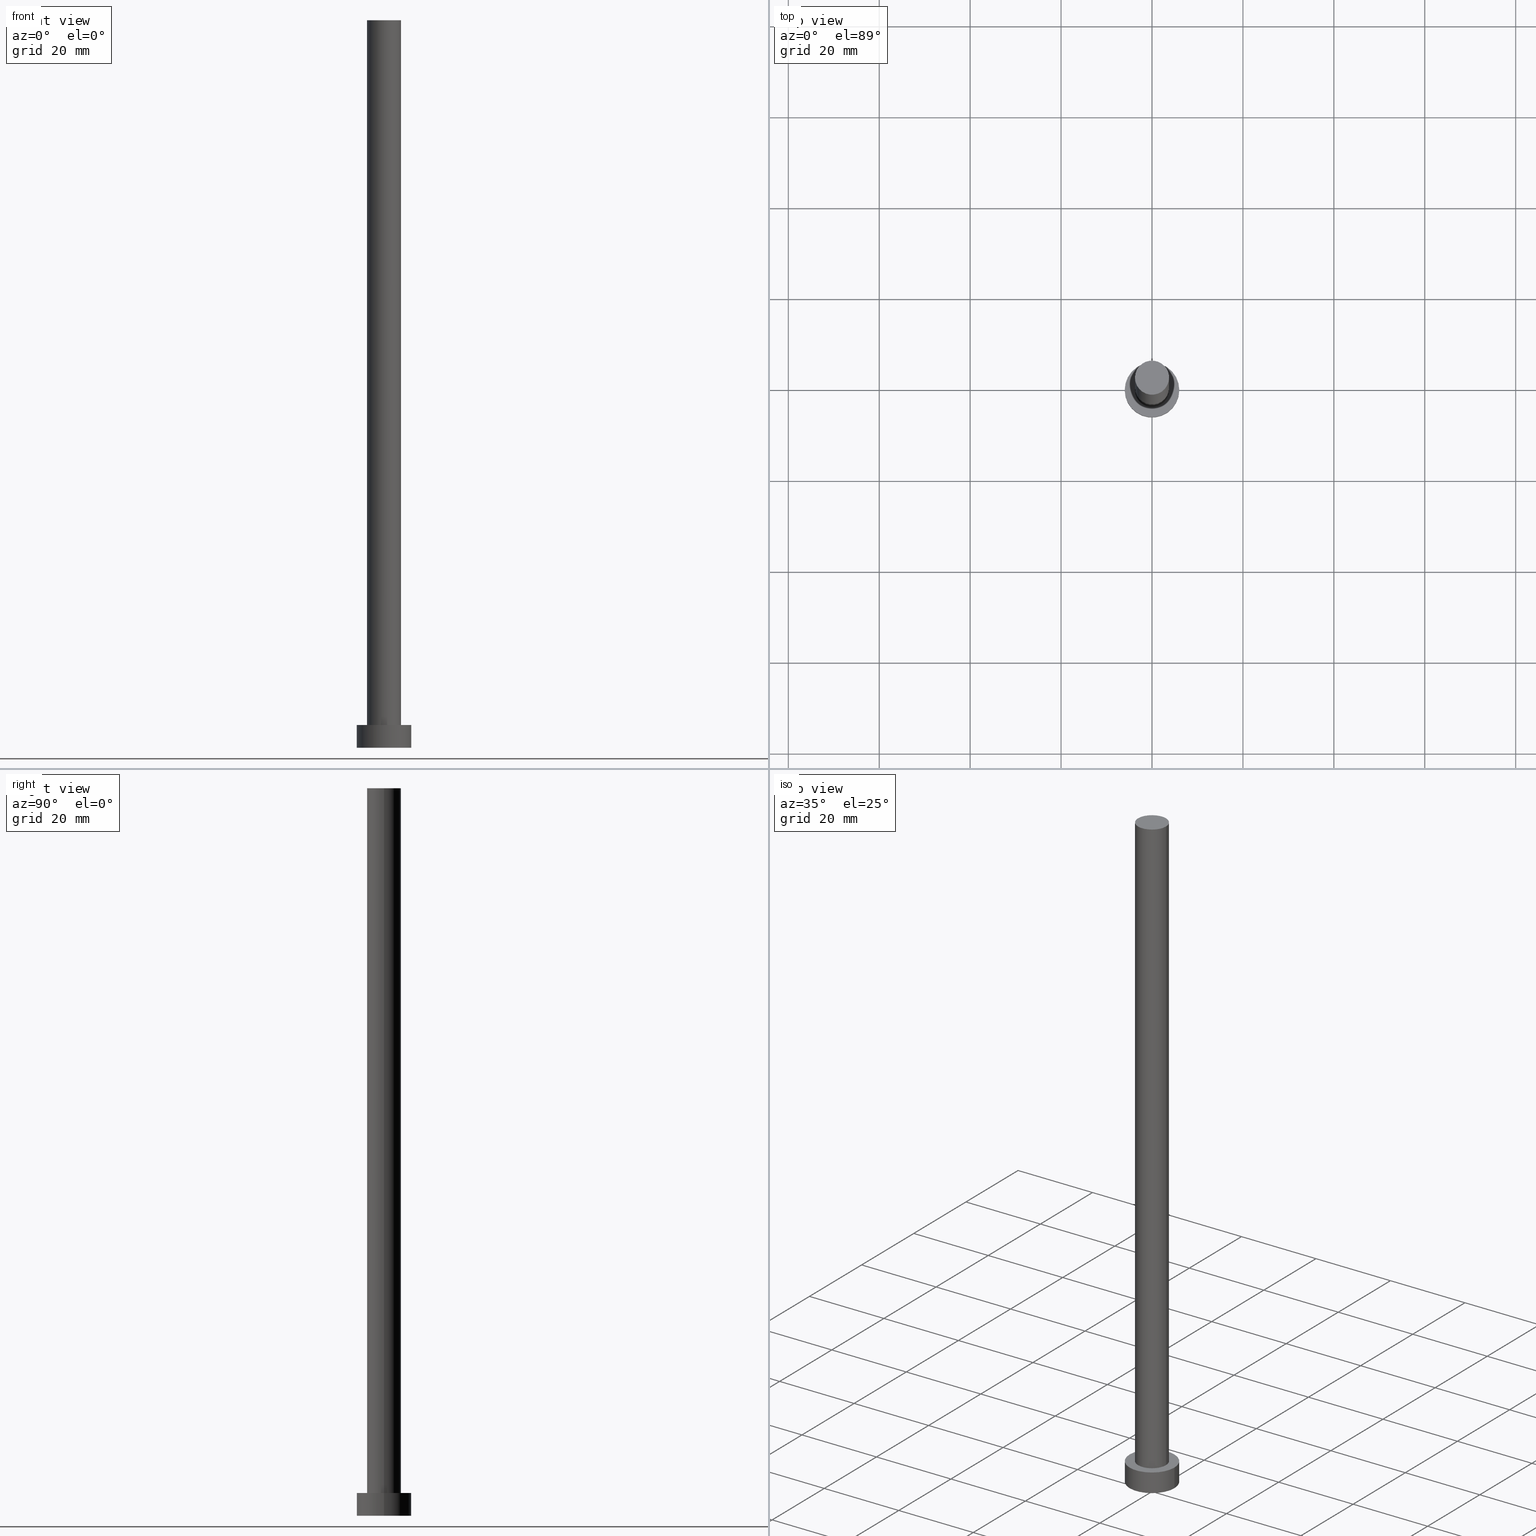
[diagram: canonical four-view strip — front | top / right | iso, engineering-drawing reading convention]
A machine part, canonical four-view strip (front | top / right | iso — engineering-drawing reading convention). The complete STEP part file that produces these views, byte-faithful:
ISO-10303-21;
HEADER;
FILE_DESCRIPTION (( 'STEP AP203' ),
    '1' );
FILE_NAME ('aaca.STEP',
    '2023-02-12T11:57:27',
    ( '' ),
    ( '' ),
    'SwSTEP 2.0',
    'SolidWorks 2019',
    '' );
FILE_SCHEMA (( 'CONFIG_CONTROL_DESIGN' ));
ENDSEC;

DATA;
#1 = APPROVAL_STATUS ( 'not_yet_approved' ) ;
#2 = APPROVAL ( #190, 'NEUR�EN�' ) ;
#3 = AXIS2_PLACEMENT_3D ( 'NONE', #227, #102, #70 ) ;
#4 = CARTESIAN_POINT ( 'NONE',  ( 6.000000000000000888, 7.347880794884120722E-16, 0.000000000000000000 ) ) ;
#5 = CARTESIAN_POINT ( 'NONE',  ( 0.000000000000000000, 0.000000000000000000, 5.000000000000000000 ) ) ;
#6 = ORIENTED_EDGE ( 'NONE', *, *, #71, .T. ) ;
#7 = APPLICATION_CONTEXT ( 'configuration controlled 3d designs of mechanical parts and assemblies' ) ;
#8 = APPROVAL_PERSON_ORGANIZATION ( #32, #232, #9 ) ;
#9 = APPROVAL_ROLE ( '' ) ;
#10 = AXIS2_PLACEMENT_3D ( 'NONE', #41, #18, #158 ) ;
#11 = CYLINDRICAL_SURFACE ( 'NONE', #252, 6.000000000000000888 ) ;
#12 = LOCAL_TIME ( 12, 57, 27.00000000000000000, #86 ) ;
#13 = CARTESIAN_POINT ( 'NONE',  ( 0.000000000000000000, 0.000000000000000000, 5.000000000000000000 ) ) ;
#14 = ORIENTED_EDGE ( 'NONE', *, *, #187, .T. ) ;
#15 =( GEOMETRIC_REPRESENTATION_CONTEXT ( 3 ) GLOBAL_UNCERTAINTY_ASSIGNED_CONTEXT ( ( #56 ) ) GLOBAL_UNIT_ASSIGNED_CONTEXT ( ( #219, #17, #76 ) ) REPRESENTATION_CONTEXT ( 'NONE', 'WORKASPACE' ) );
#16 = DIRECTION ( 'NONE',  ( -1.000000000000000000, 0.000000000000000000, 0.000000000000000000 ) ) ;
#17 =( NAMED_UNIT ( * ) PLANE_ANGLE_UNIT ( ) SI_UNIT ( $, .RADIAN. ) );
#18 = DIRECTION ( 'NONE',  ( 0.000000000000000000, 0.000000000000000000, 1.000000000000000000 ) ) ;
#19 = DATE_AND_TIME ( #57, #135 ) ;
#20 = LOCAL_TIME ( 12, 57, 27.00000000000000000, #64 ) ;
#21 = EDGE_CURVE ( 'NONE', #27, #91, #235, .T. ) ;
#22 = DATE_AND_TIME ( #44, #79 ) ;
#23 = ORIENTED_EDGE ( 'NONE', *, *, #237, .T. ) ;
#24 = DIRECTION ( 'NONE',  ( 0.000000000000000000, 0.000000000000000000, 1.000000000000000000 ) ) ;
#25 = FACE_OUTER_BOUND ( 'NONE', #142, .T. ) ;
#26 = PRODUCT_RELATED_PRODUCT_CATEGORY ( 'detail', '', ( #115 ) ) ;
#27 = VERTEX_POINT ( 'NONE', #118 ) ;
#28 = CARTESIAN_POINT ( 'NONE',  ( 0.000000000000000000, 0.000000000000000000, 5.000000000000000000 ) ) ;
#29 = APPROVAL_DATE_TIME ( #211, #232 ) ;
#30 = DIRECTION ( 'NONE',  ( 0.000000000000000000, 0.000000000000000000, 1.000000000000000000 ) ) ;
#31 = DIRECTION ( 'NONE',  ( -1.000000000000000000, 0.000000000000000000, 0.000000000000000000 ) ) ;
#32 = PERSON_AND_ORGANIZATION ( #154, #191 ) ;
#33 = EDGE_LOOP ( 'NONE', ( #212, #84, #14, #80 ) ) ;
#34 = ADVANCED_FACE ( 'NONE', ( #217 ), #193, .T. ) ;
#35 = AXIS2_PLACEMENT_3D ( 'NONE', #200, #24, #149 ) ;
#36 = DIRECTION ( 'NONE',  ( -0.000000000000000000, -0.000000000000000000, -1.000000000000000000 ) ) ;
#37 = CARTESIAN_POINT ( 'NONE',  ( 0.000000000000000000, 0.000000000000000000, 160.0000000000000000 ) ) ;
#38 = ORIENTED_EDGE ( 'NONE', *, *, #78, .F. ) ;
#39 = PERSON_AND_ORGANIZATION ( #154, #191 ) ;
#40 = CIRCLE ( 'NONE', #35, 3.750000000000000000 ) ;
#41 = CARTESIAN_POINT ( 'NONE',  ( 0.000000000000000000, 0.000000000000000000, 0.000000000000000000 ) ) ;
#42 = PRODUCT_DEFINITION ( 'NEZN�M�', '', #87, #117 ) ;
#43 = DIRECTION ( 'NONE',  ( 1.000000000000000000, 0.000000000000000000, -0.000000000000000000 ) ) ;
#44 = CALENDAR_DATE ( 2023, 12, 2 ) ;
#45 = ORIENTED_EDGE ( 'NONE', *, *, #71, .F. ) ;
#46 = ADVANCED_BREP_SHAPE_REPRESENTATION ( 'aaca', ( #113, #209 ), #15 ) ;
#47 = CYLINDRICAL_SURFACE ( 'NONE', #150, 3.750000000000000000 ) ;
#48 = AXIS2_PLACEMENT_3D ( 'NONE', #13, #68, #156 ) ;
#49 = EDGE_CURVE ( 'NONE', #162, #91, #216, .T. ) ;
#50 = APPROVAL_STATUS ( 'not_yet_approved' ) ;
#51 = DIRECTION ( 'NONE',  ( -0.000000000000000000, -0.000000000000000000, -1.000000000000000000 ) ) ;
#52 = COORDINATED_UNIVERSAL_TIME_OFFSET ( 1, 0, .AHEAD. ) ;
#53 = EDGE_CURVE ( 'NONE', #247, #160, #196, .T. ) ;
#54 = DIRECTION ( 'NONE',  ( 1.000000000000000000, 0.000000000000000000, 0.000000000000000000 ) ) ;
#55 = DIRECTION ( 'NONE',  ( -0.000000000000000000, -0.000000000000000000, -1.000000000000000000 ) ) ;
#56 = UNCERTAINTY_MEASURE_WITH_UNIT (LENGTH_MEASURE( 1.000000000000000082E-05 ), #219, 'distance_accuracy_value', 'NONE');
#57 = CALENDAR_DATE ( 2023, 12, 2 ) ;
#58 = ORIENTED_EDGE ( 'NONE', *, *, #53, .F. ) ;
#59 = CIRCLE ( 'NONE', #139, 3.750000000000000000 ) ;
#60 = MECHANICAL_CONTEXT ( 'NONE', #171, 'mechanical' ) ;
#61 = FACE_OUTER_BOUND ( 'NONE', #105, .T. ) ;
#62 = DATE_AND_TIME ( #81, #177 ) ;
#63 = EDGE_CURVE ( 'NONE', #91, #162, #202, .T. ) ;
#64 = COORDINATED_UNIVERSAL_TIME_OFFSET ( 1, 0, .AHEAD. ) ;
#65 = CARTESIAN_POINT ( 'NONE',  ( 3.750000000000000000, 4.592425496802573972E-16, 160.0000000000000000 ) ) ;
#66 = APPROVAL_DATE_TIME ( #85, #2 ) ;
#67 = VECTOR ( 'NONE', #51, 1000.000000000000000 ) ;
#68 = DIRECTION ( 'NONE',  ( 0.000000000000000000, 0.000000000000000000, 1.000000000000000000 ) ) ;
#69 = AXIS2_PLACEMENT_3D ( 'NONE', #168, #116, #234 ) ;
#70 = DIRECTION ( 'NONE',  ( 1.000000000000000000, 0.000000000000000000, 0.000000000000000000 ) ) ;
#71 = EDGE_CURVE ( 'NONE', #77, #247, #130, .T. ) ;
#72 = CARTESIAN_POINT ( 'NONE',  ( 0.000000000000000000, 0.000000000000000000, 5.000000000000000000 ) ) ;
#73 = PERSON_AND_ORGANIZATION ( #154, #191 ) ;
#74 = PLANE ( 'NONE',  #249 ) ;
#75 = ORIENTED_EDGE ( 'NONE', *, *, #253, .F. ) ;
#76 =( NAMED_UNIT ( * ) SI_UNIT ( $, .STERADIAN. ) SOLID_ANGLE_UNIT ( ) );
#77 = VERTEX_POINT ( 'NONE', #179 ) ;
#78 = EDGE_CURVE ( 'NONE', #236, #160, #198, .T. ) ;
#79 = LOCAL_TIME ( 12, 57, 27.00000000000000000, #221 ) ;
#80 = ORIENTED_EDGE ( 'NONE', *, *, #237, .F. ) ;
#81 = CALENDAR_DATE ( 2023, 12, 2 ) ;
#82 = PRODUCT_DEFINITION_SHAPE ( 'NONE', 'NONE',  #42 ) ;
#83 = AXIS2_PLACEMENT_3D ( 'NONE', #92, #98, #140 ) ;
#84 = ORIENTED_EDGE ( 'NONE', *, *, #53, .T. ) ;
#85 = DATE_AND_TIME ( #170, #12 ) ;
#86 = COORDINATED_UNIVERSAL_TIME_OFFSET ( 1, 0, .AHEAD. ) ;
#87 = PRODUCT_DEFINITION_FORMATION_WITH_SPECIFIED_SOURCE ( 'LIBOVOLN�', '', #115, .NOT_KNOWN. ) ;
#88 = CARTESIAN_POINT ( 'NONE',  ( -3.750000000000000000, 0.000000000000000000, 160.0000000000000000 ) ) ;
#89 = CLOSED_SHELL ( 'NONE', ( #240, #215, #124, #205, #93, #213, #34 ) ) ;
#90 = CC_DESIGN_PERSON_AND_ORGANIZATION_ASSIGNMENT ( #248, #107, ( #231 ) ) ;
#91 = VERTEX_POINT ( 'NONE', #222 ) ;
#92 = CARTESIAN_POINT ( 'NONE',  ( 0.000000000000000000, 0.000000000000000000, 5.000000000000000000 ) ) ;
#93 = ADVANCED_FACE ( 'NONE', ( #123 ), #74, .F. ) ;
#94 = COORDINATED_UNIVERSAL_TIME_OFFSET ( 1, 0, .AHEAD. ) ;
#95 = ORIENTED_EDGE ( 'NONE', *, *, #49, .T. ) ;
#96 = CC_DESIGN_SECURITY_CLASSIFICATION ( #231, ( #87 ) ) ;
#97 = DATE_TIME_ROLE ( 'creation_date' ) ;
#98 = DIRECTION ( 'NONE',  ( 0.000000000000000000, 0.000000000000000000, 1.000000000000000000 ) ) ;
#99 = FACE_OUTER_BOUND ( 'NONE', #181, .T. ) ;
#100 = CARTESIAN_POINT ( 'NONE',  ( 6.000000000000000888, 7.347880794884120722E-16, 5.000000000000000000 ) ) ;
#101 = ORIENTED_EDGE ( 'NONE', *, *, #228, .T. ) ;
#102 = DIRECTION ( 'NONE',  ( 0.000000000000000000, 0.000000000000000000, 1.000000000000000000 ) ) ;
#103 = ORIENTED_EDGE ( 'NONE', *, *, #187, .F. ) ;
#104 = CC_DESIGN_APPROVAL ( #2, ( #231 ) ) ;
#105 = EDGE_LOOP ( 'NONE', ( #128, #75, #243, #218 ) ) ;
#106 = PERSON_AND_ORGANIZATION ( #154, #191 ) ;
#107 = PERSON_AND_ORGANIZATION_ROLE ( 'classification_officer' ) ;
#108 = CARTESIAN_POINT ( 'NONE',  ( 0.000000000000000000, 0.000000000000000000, 5.000000000000000000 ) ) ;
#109 = CC_DESIGN_PERSON_AND_ORGANIZATION_ASSIGNMENT ( #73, #143, ( #42 ) ) ;
#110 = AXIS2_PLACEMENT_3D ( 'NONE', #28, #30, #225 ) ;
#111 = CC_DESIGN_PERSON_AND_ORGANIZATION_ASSIGNMENT ( #141, #197, ( #115 ) ) ;
#112 = LINE ( 'NONE', #192, #223 ) ;
#113 = MANIFOLD_SOLID_BREP ( 'P�idat vysunut�m3', #89 ) ;
#114 = ORIENTED_EDGE ( 'NONE', *, *, #49, .F. ) ;
#115 = PRODUCT ( 'aaca', 'aaca', '', ( #60 ) ) ;
#116 = DIRECTION ( 'NONE',  ( 0.000000000000000000, 0.000000000000000000, 1.000000000000000000 ) ) ;
#117 = DESIGN_CONTEXT ( 'detailed design', #7, 'design' ) ;
#118 = CARTESIAN_POINT ( 'NONE',  ( -3.750000000000000000, 0.000000000000000000, 160.0000000000000000 ) ) ;
#119 = DIRECTION ( 'NONE',  ( 0.000000000000000000, 0.000000000000000000, 1.000000000000000000 ) ) ;
#120 = AXIS2_PLACEMENT_3D ( 'NONE', #72, #36, #16 ) ;
#121 = ORIENTED_EDGE ( 'NONE', *, *, #78, .T. ) ;
#122 = APPLICATION_PROTOCOL_DEFINITION ( 'international standard', 'config_control_design', 1994, #171 ) ;
#123 = FACE_OUTER_BOUND ( 'NONE', #194, .T. ) ;
#124 = ADVANCED_FACE ( 'NONE', ( #99 ), #241, .T. ) ;
#125 = EDGE_LOOP ( 'NONE', ( #204, #114 ) ) ;
#126 = CIRCLE ( 'NONE', #83, 6.000000000000000888 ) ;
#127 = CARTESIAN_POINT ( 'NONE',  ( 0.000000000000000000, 0.000000000000000000, 0.000000000000000000 ) ) ;
#128 = ORIENTED_EDGE ( 'NONE', *, *, #228, .F. ) ;
#129 = DATE_TIME_ROLE ( 'classification_date' ) ;
#130 = CIRCLE ( 'NONE', #203, 6.000000000000000888 ) ;
#131 = AXIS2_PLACEMENT_3D ( 'NONE', #37, #183, #245 ) ;
#132 = EDGE_CURVE ( 'NONE', #247, #77, #126, .T. ) ;
#133 = CARTESIAN_POINT ( 'NONE',  ( 6.000000000000000888, 7.347880794884120722E-16, 5.000000000000000000 ) ) ;
#134 = LINE ( 'NONE', #65, #67 ) ;
#135 = LOCAL_TIME ( 12, 57, 27.00000000000000000, #94 ) ;
#136 = DIRECTION ( 'NONE',  ( -0.000000000000000000, -0.000000000000000000, -1.000000000000000000 ) ) ;
#137 = DIRECTION ( 'NONE',  ( 0.000000000000000000, 0.000000000000000000, 1.000000000000000000 ) ) ;
#138 = CC_DESIGN_PERSON_AND_ORGANIZATION_ASSIGNMENT ( #106, #250, ( #87 ) ) ;
#139 = AXIS2_PLACEMENT_3D ( 'NONE', #246, #180, #172 ) ;
#140 = DIRECTION ( 'NONE',  ( 1.000000000000000000, 0.000000000000000000, 0.000000000000000000 ) ) ;
#141 = PERSON_AND_ORGANIZATION ( #154, #191 ) ;
#142 = EDGE_LOOP ( 'NONE', ( #207, #101, #95, #184 ) ) ;
#143 = PERSON_AND_ORGANIZATION_ROLE ( 'creator' ) ;
#144 = DIRECTION ( 'NONE',  ( 0.000000000000000000, 0.000000000000000000, 1.000000000000000000 ) ) ;
#145 = CARTESIAN_POINT ( 'NONE',  ( 0.000000000000000000, 0.000000000000000000, 0.000000000000000000 ) ) ;
#146 = PERSON_AND_ORGANIZATION ( #154, #191 ) ;
#147 = PLANE ( 'NONE',  #110 ) ;
#148 = EDGE_LOOP ( 'NONE', ( #6, #255 ) ) ;
#149 = DIRECTION ( 'NONE',  ( 1.000000000000000000, 0.000000000000000000, 0.000000000000000000 ) ) ;
#150 = AXIS2_PLACEMENT_3D ( 'NONE', #189, #251, #31 ) ;
#151 = FACE_OUTER_BOUND ( 'NONE', #33, .T. ) ;
#152 = FACE_OUTER_BOUND ( 'NONE', #148, .T. ) ;
#153 = CC_DESIGN_DATE_AND_TIME_ASSIGNMENT ( #62, #129, ( #231 ) ) ;
#154 = PERSON ( 'NEUR�EN�', 'NEUR�EN�', 'NEUR�EN�', ('NEUR�EN�'), ('NEUR�EN�'), ('NEUR�EN�') ) ;
#155 = SHAPE_DEFINITION_REPRESENTATION ( #82, #46 ) ;
#156 = DIRECTION ( 'NONE',  ( 1.000000000000000000, 0.000000000000000000, 0.000000000000000000 ) ) ;
#157 = APPROVAL ( #1, 'NEUR�EN�' ) ;
#158 = DIRECTION ( 'NONE',  ( 1.000000000000000000, 0.000000000000000000, 0.000000000000000000 ) ) ;
#159 = DIRECTION ( 'NONE',  ( 1.000000000000000000, 0.000000000000000000, 0.000000000000000000 ) ) ;
#160 = VERTEX_POINT ( 'NONE', #4 ) ;
#161 = CYLINDRICAL_SURFACE ( 'NONE', #131, 3.750000000000000000 ) ;
#162 = VERTEX_POINT ( 'NONE', #226 ) ;
#163 = APPROVAL_PERSON_ORGANIZATION ( #39, #157, #199 ) ;
#164 = FACE_BOUND ( 'NONE', #125, .T. ) ;
#165 = APPROVAL_PERSON_ORGANIZATION ( #233, #2, #214 ) ;
#166 = EDGE_LOOP ( 'NONE', ( #224, #242 ) ) ;
#167 = DIRECTION ( 'NONE',  ( -1.000000000000000000, 0.000000000000000000, 0.000000000000000000 ) ) ;
#168 = CARTESIAN_POINT ( 'NONE',  ( 0.000000000000000000, 0.000000000000000000, 160.0000000000000000 ) ) ;
#169 = DIRECTION ( 'NONE',  ( -0.000000000000000000, -0.000000000000000000, -1.000000000000000000 ) ) ;
#170 = CALENDAR_DATE ( 2023, 12, 2 ) ;
#171 = APPLICATION_CONTEXT ( 'configuration controlled 3d designs of mechanical parts and assemblies' ) ;
#172 = DIRECTION ( 'NONE',  ( 1.000000000000000000, 0.000000000000000000, 0.000000000000000000 ) ) ;
#173 = DIRECTION ( 'NONE',  ( 0.000000000000000000, 0.000000000000000000, 1.000000000000000000 ) ) ;
#174 = DIRECTION ( 'NONE',  ( -0.000000000000000000, -0.000000000000000000, -1.000000000000000000 ) ) ;
#175 = APPLICATION_PROTOCOL_DEFINITION ( 'international standard', 'config_control_design', 1994, #7 ) ;
#176 = CC_DESIGN_DATE_AND_TIME_ASSIGNMENT ( #22, #97, ( #42 ) ) ;
#177 = LOCAL_TIME ( 12, 57, 27.00000000000000000, #52 ) ;
#178 = APPROVAL_DATE_TIME ( #19, #157 ) ;
#179 = CARTESIAN_POINT ( 'NONE',  ( -6.000000000000000888, 0.000000000000000000, 5.000000000000000000 ) ) ;
#180 = DIRECTION ( 'NONE',  ( 0.000000000000000000, 0.000000000000000000, 1.000000000000000000 ) ) ;
#181 = EDGE_LOOP ( 'NONE', ( #58, #45, #23, #121 ) ) ;
#182 = CC_DESIGN_PERSON_AND_ORGANIZATION_ASSIGNMENT ( #146, #230, ( #87 ) ) ;
#183 = DIRECTION ( 'NONE',  ( -0.000000000000000000, -0.000000000000000000, -1.000000000000000000 ) ) ;
#184 = ORIENTED_EDGE ( 'NONE', *, *, #21, .F. ) ;
#185 = VECTOR ( 'NONE', #55, 1000.000000000000000 ) ;
#186 = CALENDAR_DATE ( 2023, 12, 2 ) ;
#187 = EDGE_CURVE ( 'NONE', #160, #236, #229, .T. ) ;
#188 = CARTESIAN_POINT ( 'NONE',  ( 3.750000000000000000, 4.592425496802573972E-16, 160.0000000000000000 ) ) ;
#189 = CARTESIAN_POINT ( 'NONE',  ( 0.000000000000000000, 0.000000000000000000, 160.0000000000000000 ) ) ;
#190 = APPROVAL_STATUS ( 'not_yet_approved' ) ;
#191 = ORGANIZATION ( 'NEUR�EN�', 'NEUR�EN�', '' ) ;
#192 = CARTESIAN_POINT ( 'NONE',  ( -6.000000000000000888, 0.000000000000000000, 5.000000000000000000 ) ) ;
#193 = PLANE ( 'NONE',  #69 ) ;
#194 = EDGE_LOOP ( 'NONE', ( #38, #103 ) ) ;
#195 = EDGE_CURVE ( 'NONE', #220, #27, #40, .T. ) ;
#196 = LINE ( 'NONE', #133, #239 ) ;
#197 = PERSON_AND_ORGANIZATION_ROLE ( 'design_owner' ) ;
#198 = CIRCLE ( 'NONE', #3, 6.000000000000000888 ) ;
#199 = APPROVAL_ROLE ( '' ) ;
#200 = CARTESIAN_POINT ( 'NONE',  ( 0.000000000000000000, 0.000000000000000000, 160.0000000000000000 ) ) ;
#201 = DIRECTION ( 'NONE',  ( 1.000000000000000000, 0.000000000000000000, 0.000000000000000000 ) ) ;
#202 = CIRCLE ( 'NONE', #48, 3.750000000000000000 ) ;
#203 = AXIS2_PLACEMENT_3D ( 'NONE', #5, #173, #159 ) ;
#204 = ORIENTED_EDGE ( 'NONE', *, *, #63, .F. ) ;
#205 = ADVANCED_FACE ( 'NONE', ( #164, #152 ), #147, .T. ) ;
#206 = CC_DESIGN_APPROVAL ( #157, ( #42 ) ) ;
#207 = ORIENTED_EDGE ( 'NONE', *, *, #195, .F. ) ;
#208 = SECURITY_CLASSIFICATION_LEVEL ( 'unclassified' ) ;
#209 = AXIS2_PLACEMENT_3D ( 'NONE', #145, #119, #201 ) ;
#210 = CARTESIAN_POINT ( 'NONE',  ( -6.000000000000000888, 0.000000000000000000, 0.000000000000000000 ) ) ;
#211 = DATE_AND_TIME ( #186, #20 ) ;
#212 = ORIENTED_EDGE ( 'NONE', *, *, #132, .F. ) ;
#213 = ADVANCED_FACE ( 'NONE', ( #61 ), #47, .T. ) ;
#214 = APPROVAL_ROLE ( '' ) ;
#215 = ADVANCED_FACE ( 'NONE', ( #151 ), #11, .T. ) ;
#216 = CIRCLE ( 'NONE', #244, 3.750000000000000000 ) ;
#217 = FACE_OUTER_BOUND ( 'NONE', #166, .T. ) ;
#218 = ORIENTED_EDGE ( 'NONE', *, *, #63, .T. ) ;
#219 =( LENGTH_UNIT ( ) NAMED_UNIT ( * ) SI_UNIT ( .MILLI., .METRE. ) );
#220 = VERTEX_POINT ( 'NONE', #188 ) ;
#221 = COORDINATED_UNIVERSAL_TIME_OFFSET ( 1, 0, .AHEAD. ) ;
#222 = CARTESIAN_POINT ( 'NONE',  ( -3.750000000000000000, 0.000000000000000000, 5.000000000000000000 ) ) ;
#223 = VECTOR ( 'NONE', #174, 1000.000000000000000 ) ;
#224 = ORIENTED_EDGE ( 'NONE', *, *, #253, .T. ) ;
#225 = DIRECTION ( 'NONE',  ( 1.000000000000000000, 0.000000000000000000, -0.000000000000000000 ) ) ;
#226 = CARTESIAN_POINT ( 'NONE',  ( 3.750000000000000000, 4.592425496802573972E-16, 5.000000000000000000 ) ) ;
#227 = CARTESIAN_POINT ( 'NONE',  ( 0.000000000000000000, 0.000000000000000000, 0.000000000000000000 ) ) ;
#228 = EDGE_CURVE ( 'NONE', #220, #162, #134, .T. ) ;
#229 = CIRCLE ( 'NONE', #10, 6.000000000000000888 ) ;
#230 = PERSON_AND_ORGANIZATION_ROLE ( 'creator' ) ;
#231 = SECURITY_CLASSIFICATION ( '', '', #208 ) ;
#232 = APPROVAL ( #50, 'NEUR�EN�' ) ;
#233 = PERSON_AND_ORGANIZATION ( #154, #191 ) ;
#234 = DIRECTION ( 'NONE',  ( 1.000000000000000000, 0.000000000000000000, -0.000000000000000000 ) ) ;
#235 = LINE ( 'NONE', #88, #185 ) ;
#236 = VERTEX_POINT ( 'NONE', #210 ) ;
#237 = EDGE_CURVE ( 'NONE', #77, #236, #112, .T. ) ;
#238 = CARTESIAN_POINT ( 'NONE',  ( 0.000000000000000000, 0.000000000000000000, 5.000000000000000000 ) ) ;
#239 = VECTOR ( 'NONE', #136, 1000.000000000000000 ) ;
#240 = ADVANCED_FACE ( 'NONE', ( #25 ), #161, .T. ) ;
#241 = CYLINDRICAL_SURFACE ( 'NONE', #120, 6.000000000000000888 ) ;
#242 = ORIENTED_EDGE ( 'NONE', *, *, #195, .T. ) ;
#243 = ORIENTED_EDGE ( 'NONE', *, *, #21, .T. ) ;
#244 = AXIS2_PLACEMENT_3D ( 'NONE', #238, #137, #54 ) ;
#245 = DIRECTION ( 'NONE',  ( -1.000000000000000000, 0.000000000000000000, 0.000000000000000000 ) ) ;
#246 = CARTESIAN_POINT ( 'NONE',  ( 0.000000000000000000, 0.000000000000000000, 160.0000000000000000 ) ) ;
#247 = VERTEX_POINT ( 'NONE', #100 ) ;
#248 = PERSON_AND_ORGANIZATION ( #154, #191 ) ;
#249 = AXIS2_PLACEMENT_3D ( 'NONE', #127, #144, #43 ) ;
#250 = PERSON_AND_ORGANIZATION_ROLE ( 'design_supplier' ) ;
#251 = DIRECTION ( 'NONE',  ( -0.000000000000000000, -0.000000000000000000, -1.000000000000000000 ) ) ;
#252 = AXIS2_PLACEMENT_3D ( 'NONE', #108, #169, #167 ) ;
#253 = EDGE_CURVE ( 'NONE', #27, #220, #59, .T. ) ;
#254 = CC_DESIGN_APPROVAL ( #232, ( #87 ) ) ;
#255 = ORIENTED_EDGE ( 'NONE', *, *, #132, .T. ) ;
ENDSEC;
END-ISO-10303-21;
